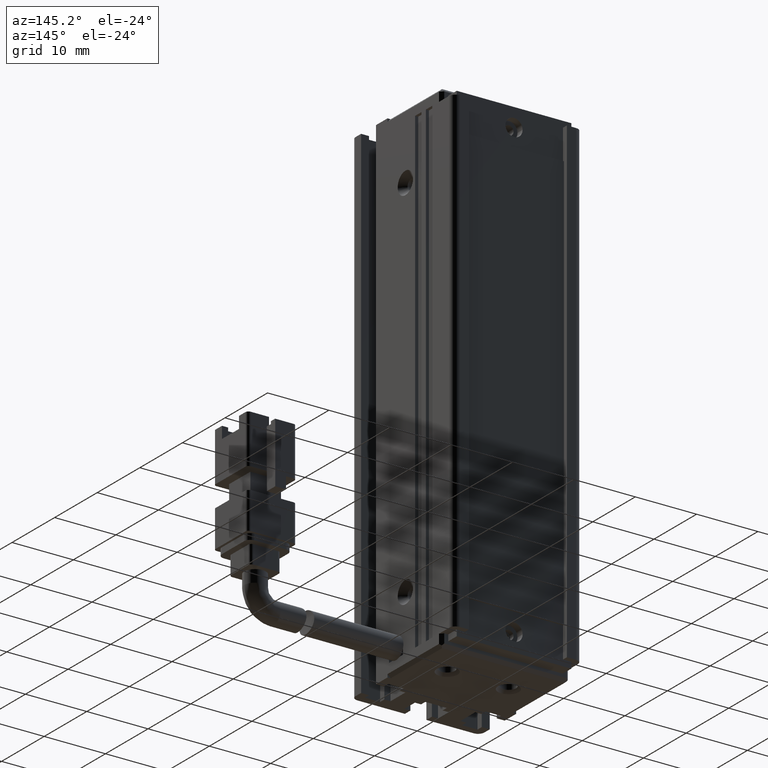
[diagram: clean part render]
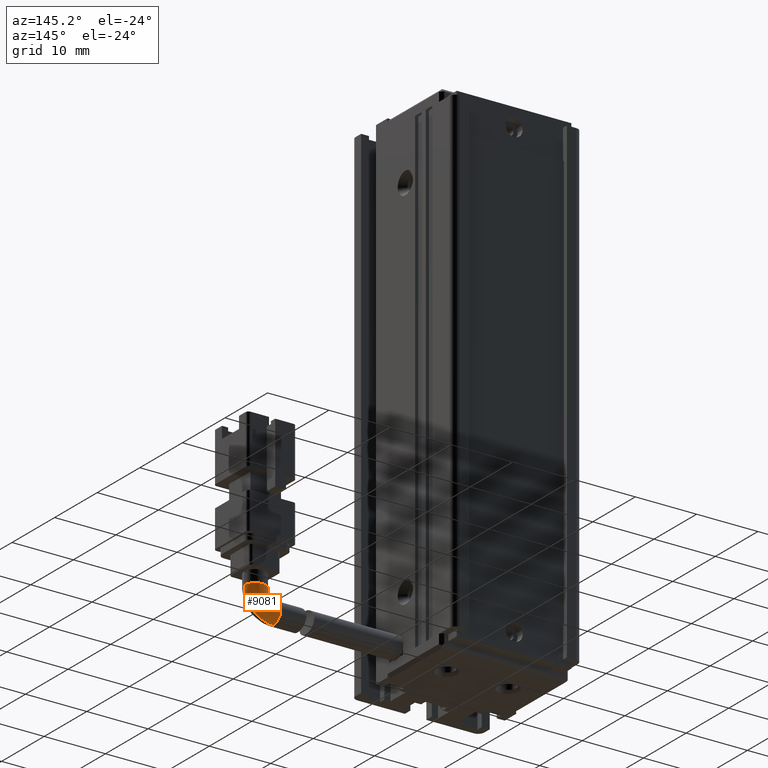
[diagram: same view with one face highlighted and labeled with its STEP entity id]
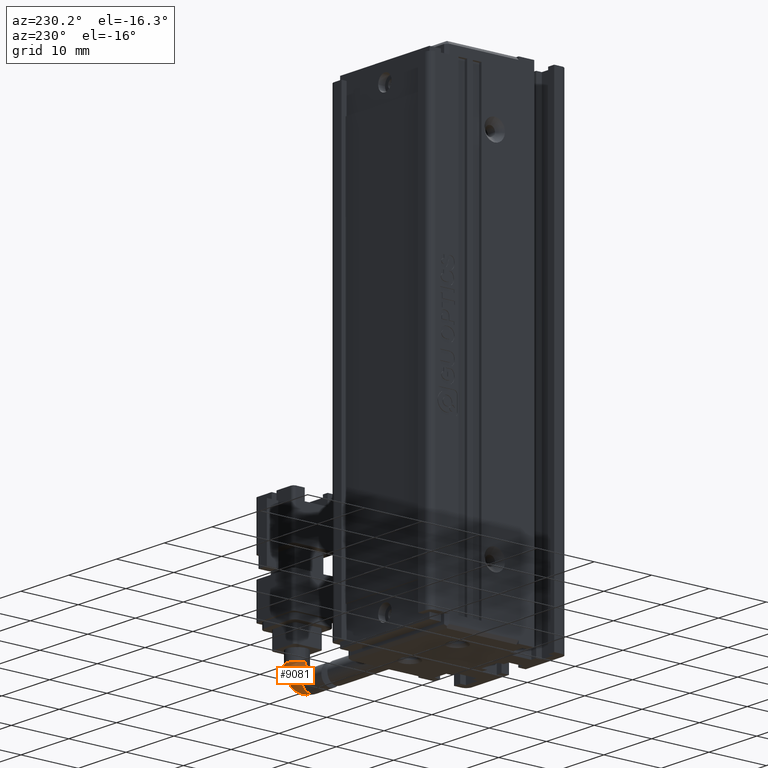
[diagram: same view with one face highlighted and labeled with its STEP entity id]
A machine part, auxiliary view. The second image highlights one B-rep face of the part: STEP entity #9081.
A second angle (auxiliary view) of the same face is appended — the face is thin or edge-on in the first view.
In plain terms, the highlighted face is a freeform B-spline surface patch.
Its self-contained STEP definition (entity closure, byte-faithful):
#440 = AXIS2_PLACEMENT_3D ( 'NONE', #11675, #4899, #7109 ) ;
#1082 = CARTESIAN_POINT ( 'NONE',  ( 76.17537974683536100, 21.49073232304860100, -149.4499999999999900 ) ) ;
#1337 = CARTESIAN_POINT ( 'NONE',  ( 71.42537974683530400, 24.99073232304860800, -154.1999999999999900 ) ) ;
#1834 = ORIENTED_EDGE ( 'NONE', *, *, #28253, .T. ) ;
#3454 = CARTESIAN_POINT ( 'NONE',  ( 72.67537974683530400, 24.99073232304860800, -150.1822330470336300 ) ) ;
#4899 = DIRECTION ( 'NONE',  ( -3.304235192336770400E-015, 1.000000000000000000, -5.551115123125780200E-017 ) ) ;
#5189 = DIRECTION ( 'NONE',  ( 1.000000000000000000, 3.304235192336770400E-015, 8.579261317967046800E-031 ) ) ;
#5634 = CARTESIAN_POINT ( 'NONE',  ( 72.15761279386889300, 24.99073232304860800, -150.6999999999999600 ) ) ;
#5943 = CARTESIAN_POINT ( 'NONE',  ( 76.17537974683536100, 21.49073232304860400, -149.4500000000000200 ) ) ;
#5946 = ORIENTED_EDGE ( 'NONE', *, *, #20364, .F. ) ;
#6525 = ORIENTED_EDGE ( 'NONE', *, *, #23597, .F. ) ;
#7109 = DIRECTION ( 'NONE',  ( 0.0000000000000000000, 0.0000000000000000000, -1.000000000000000000 ) ) ;
#7194 = CIRCLE ( 'NONE', #16425, 4.750000000000004400 ) ;
#7502 = CARTESIAN_POINT ( 'NONE',  ( 71.42537974683536100, 21.49073232304858300, -152.4499999999999900 ) ) ;
#8042 = CARTESIAN_POINT ( 'NONE',  ( 74.20786532556312000, 24.99073232304861500, -154.2000000000000200 ) ) ;
#8576 = CARTESIAN_POINT ( 'NONE',  ( 71.42537974683536100, 21.49073232304857600, -154.2000000000000200 ) ) ;
#9081 = ADVANCED_FACE ( 'NONE', ( #22647 ), #24133, .T. ) ;
#9850 = DIRECTION ( 'NONE',  ( 0.0000000000000000000, 0.0000000000000000000, -1.000000000000000000 ) ) ;
#10004 = DIRECTION ( 'NONE',  ( 1.000000000000000000, 3.965082230804126700E-015, 0.0000000000000000000 ) ) ;
#10405 = CARTESIAN_POINT ( 'NONE',  ( 72.67537974683533300, 21.49073232304858300, -150.1822330470336600 ) ) ;
#10507 = CARTESIAN_POINT ( 'NONE',  ( 71.42537974683530400, 24.99073232304860100, -150.6999999999999300 ) ) ;
#10586 = ORIENTED_EDGE ( 'NONE', *, *, #11555, .T. ) ;
#10934 = CARTESIAN_POINT ( 'NONE',  ( 71.42537974683536100, 21.49073232304857600, -150.6999999999999900 ) ) ;
#11555 = EDGE_CURVE ( 'NONE', #19666, #28130, #16977, .T. ) ;
#11675 = CARTESIAN_POINT ( 'NONE',  ( 71.42537974683536100, 21.49073232304858300, -149.4499999999999900 ) ) ;
#12513 = CARTESIAN_POINT ( 'NONE',  ( 72.67537974683536100, 21.49073232304857900, -149.4500000000000200 ) ) ;
#13631 = DIRECTION ( 'NONE',  ( -3.304235192336770400E-015, 1.000000000000000000, -5.551115123125780200E-017 ) ) ;
#14721 = CARTESIAN_POINT ( 'NONE',  ( 72.67537974683531800, 24.99073232304860100, -149.4500000000000200 ) ) ;
#14725 = DIRECTION ( 'NONE',  ( 2.143131898507846900E-016, 5.551115123125850500E-017, 1.000000000000000000 ) ) ;
#16027 = CIRCLE ( 'NONE', #24169, 1.750000000000001600 ) ;
#16079 = DIRECTION ( 'NONE',  ( 0.0000000000000000000, 0.0000000000000000000, -1.000000000000000000 ) ) ;
#16425 = AXIS2_PLACEMENT_3D ( 'NONE', #27522, #13631, #16079 ) ;
#16977 = CIRCLE ( 'NONE', #22270, 1.750000000000001600 ) ;
#18120 = VERTEX_POINT ( 'NONE', #1082 ) ;
#19413 = CARTESIAN_POINT ( 'NONE',  ( 72.15761279386895000, 21.49073232304858300, -150.7000000000000200 ) ) ;
#19618 = CARTESIAN_POINT ( 'NONE',  ( 76.17537974683533300, 24.99073232304862200, -149.4500000000000200 ) ) ;
#19666 = VERTEX_POINT ( 'NONE', #8576 ) ;
#20364 = EDGE_CURVE ( 'NONE', #23163, #28130, #20733, .T. ) ;
#20733 = CIRCLE ( 'NONE', #440, 1.250000000000001100 ) ;
#21679 = CARTESIAN_POINT ( 'NONE',  ( 76.17537974683534700, 21.49073232304859700, -152.2324855787278200 ) ) ;
#21996 = CARTESIAN_POINT ( 'NONE',  ( 74.20786532556312000, 21.49073232304859700, -154.2000000000000200 ) ) ;
#22270 = AXIS2_PLACEMENT_3D ( 'NONE', #7502, #5189, #9850 ) ;
#22647 = FACE_OUTER_BOUND ( 'NONE', #24826, .T. ) ;
#23163 = VERTEX_POINT ( 'NONE', #26299 ) ;
#23597 = EDGE_CURVE ( 'NONE', #18120, #23163, #16027, .T. ) ;
#24133 =( BOUNDED_SURFACE ( )  B_SPLINE_SURFACE ( 3, 3, ( 
 ( #12513, #10405, #19413, #28628 ),
 ( #14721, #3454, #5634, #10507 ),
 ( #19618, #26564, #8042, #1337 ),
 ( #5943, #21679, #21996, #24329 ) ),
 .UNSPECIFIED., .F., .F., .F. ) 
 B_SPLINE_SURFACE_WITH_KNOTS ( ( 4, 4 ),
 ( 4, 4 ),
 ( 0.0000000000000000000, 1.000000000000000000 ),
 ( 0.0000000000000000000, 1.000000000000000000 ),
 .UNSPECIFIED. ) 
 GEOMETRIC_REPRESENTATION_ITEM ( )  RATIONAL_B_SPLINE_SURFACE ( (
 ( 1.000000000000000000, 0.8047378541243649400, 0.8047378541243649400, 1.000000000000000000),
 ( 0.3333333333333311500, 0.2682459513747865700, 0.2682459513747865700, 0.3333333333333311500),
 ( 0.3333333333333311500, 0.2682459513747865700, 0.2682459513747865700, 0.3333333333333311500),
 ( 1.000000000000000000, 0.8047378541243649400, 0.8047378541243649400, 1.000000000000000000) ) ) 
 REPRESENTATION_ITEM ( '' )  SURFACE ( )  );
#24169 = AXIS2_PLACEMENT_3D ( 'NONE', #28744, #14725, #10004 ) ;
#24329 = CARTESIAN_POINT ( 'NONE',  ( 71.42537974683533300, 21.49073232304858600, -154.2000000000000200 ) ) ;
#24826 = EDGE_LOOP ( 'NONE', ( #5946, #6525, #1834, #10586 ) ) ;
#26299 = CARTESIAN_POINT ( 'NONE',  ( 72.67537974683536100, 21.49073232304858600, -149.4499999999999900 ) ) ;
#26564 = CARTESIAN_POINT ( 'NONE',  ( 76.17537974683533300, 24.99073232304862200, -152.2324855787278200 ) ) ;
#27522 = CARTESIAN_POINT ( 'NONE',  ( 71.42537974683536100, 21.49073232304858300, -149.4499999999999900 ) ) ;
#28130 = VERTEX_POINT ( 'NONE', #10934 ) ;
#28253 = EDGE_CURVE ( 'NONE', #18120, #19666, #7194, .T. ) ;
#28628 = CARTESIAN_POINT ( 'NONE',  ( 71.42537974683533300, 21.49073232304857600, -150.6999999999999900 ) ) ;
#28744 = CARTESIAN_POINT ( 'NONE',  ( 74.42537974683536100, 21.49073232304859400, -149.4499999999999900 ) ) ;